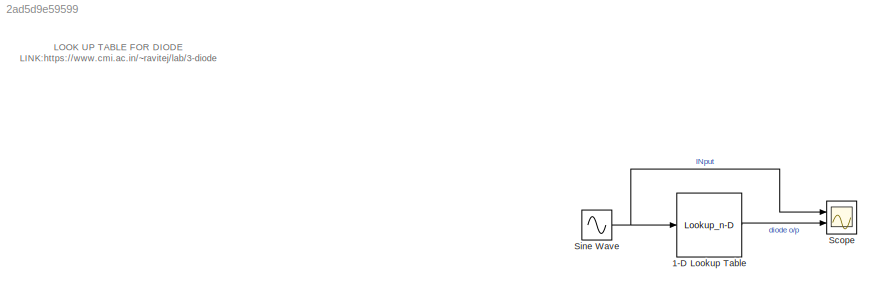
MODEL slx_2ad5d9e59599
KIND model
CONFIG AbsTol = auto
CONFIG EnableMultiTasking = off
CONFIG FixedStep = auto
CONFIG MaxStep = auto
CONFIG MinStep = auto
CONFIG RelTol = 1e-3
CONFIG SampleTimeConstraint = Unconstrained
CONFIG SolverName = VariableStepAuto
CONFIG StartTime = 0.0
CONFIG StopTime = 10.0
WORKSPACE source: mxarray member
WORKSPACE input = [-2.6e-05 -2.4e-05 -2.2e-05 -2e-05 -1.8e-05 -1.6e-05 -1.4e-05 -1.2e-05 -1e-05 -8e-06 -6e-06 -4e-06 ... (25 elements, 1x25)]
WORKSPACE output = [-27.9 -25.6 -23.5 -21.4 -18.66 -16.88 -16.88 -15.35 -13 -10.95 -8.84 -7.84 ... (27 elements, 1x27)]
BLOCK [Lookup_n-D] 1-D Lookup Table
  BreakpointsForDimension1 = [-27.9 -25.6 -23.5 -21.4 -18.66 -16.88 -15.35 -13.00 -10.95 -8.84 -6.70 -4.34 -2.24 0 0.58 0.66 0.69 0.70 0.71 0.72 0.73 0.74 0.75 0.76 0.77]
  InputPortMap = u0
  InternalRulePriority = Speed
  NumberOfTableDimensions = 1
  Ports = [1, 1]
  RndMeth = Simplest
  Table = [-26*10^(-6) -24*10^(-6) -22*10^(-6) -20*10^(-6) -18*10^(-6) -16*10^(-6) -14*10^(-6) -12*10^(-6) -10*10^(-6) -8*10^(-6) -6*10^(-6) -4*10^(-6) -2*10^(-6) 0 0 5*10^(-3) 10*10^(-3) 15*10^(-3) 20*10^(-3) 25*10^(-3) 30*10^(-3) 40*10^(-3) 55*10^(-3) 70*10^(-3) 95*10^(-3)]
BLOCK [Scope] Scope
  Floating = off
  NumInputPorts = 2
  Ports = [2]
  ScopeSpecificationString = Simulink.scopes.TimeScopeBlockCfg('CurrentConfiguration', extmgr.ConfigurationSet(extmgr.Configuration('Core','General UI',true),extmgr.Configuration('Core','Source UI',true),extmgr.Configuration('Sources','WiredSimulink',true),extmgr.Configuration('Visuals','Time Domain',true,'SerializedDisplays',{struct('MinYLimReal','-1.24563','MaxYLimReal','1.24904','YLabelReal','','MinYLimMag','0.00000','MaxY...<+1985ch>
BLOCK [Sin] Sine Wave
  Ports = [0, 1]
  SampleTime = 0
ANNOTATION (root): LOOK UP TABLE FOR DIODE LINK:https://www.cmi.ac.in/~ravitej/lab/3-diode
LINE 1-D Lookup Table:1 -> Scope:2
NET Sine Wave:1 -> 1-D Lookup Table:1, Scope:1
note: NET lines group one-source signal fan-out (src -> all destinations, sorted); 1:1 wires keep LINE
